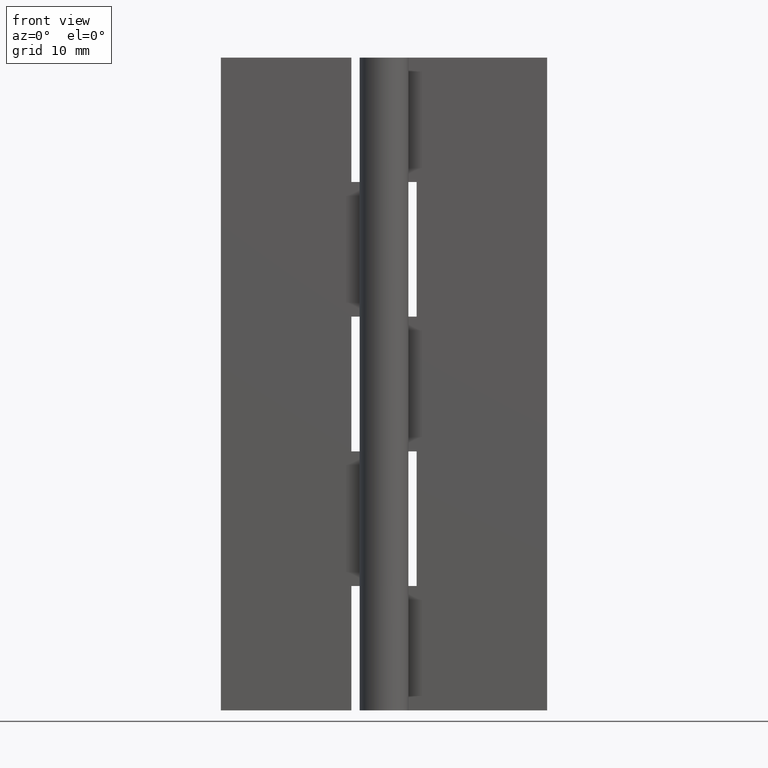
[diagram: clean part render]
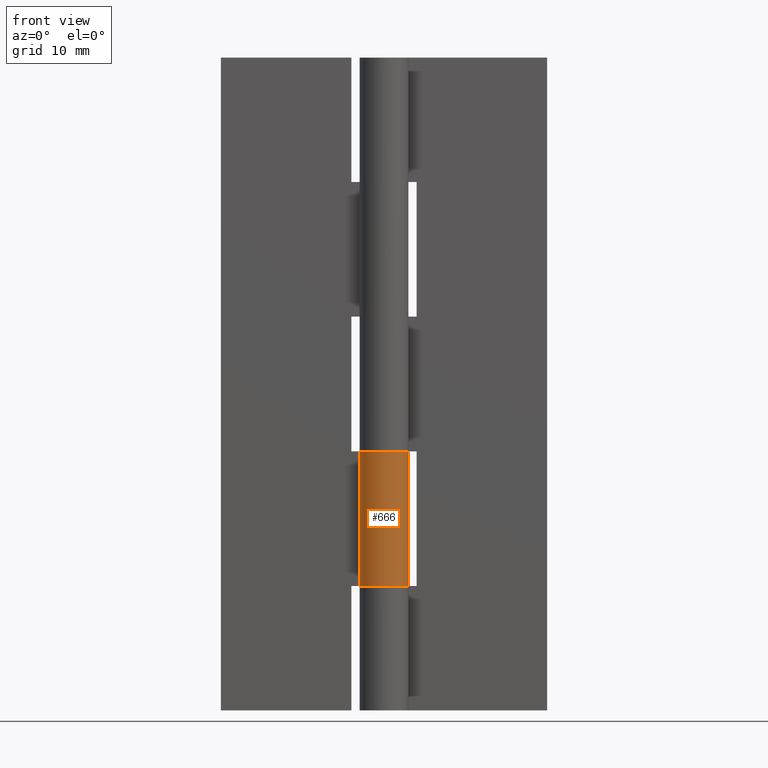
[diagram: same view with one face highlighted and labeled with its STEP entity id]
A machine part, front view. The second image highlights one B-rep face of the part: STEP entity #666.
In plain terms, the highlighted face is a freeform B-spline surface patch.
Its self-contained STEP definition (entity closure, byte-faithful):
#51=CARTESIAN_POINT('',(0.0,3.0,31.750000000000000));
#52=VERTEX_POINT('',#51);
#93=CARTESIAN_POINT('',(-2.626309197333780,1.450000000000000,31.750000000000000));
#94=VERTEX_POINT('',#93);
#100=CARTESIAN_POINT('',(0.0,3.0,31.750000000000000));
#101=CARTESIAN_POINT('',(2.290598042424808,3.0,31.750000000000000));
#102=CARTESIAN_POINT('',(2.894028888043301,0.790314364775724,31.750000000000000));
#103=CARTESIAN_POINT('',(3.497459733661794,-1.419371270448550,31.750000000000000));
#104=CARTESIAN_POINT('',(1.524795068197693,-2.583602136552761,31.750000000000000));
#105=CARTESIAN_POINT('',(-0.447869597266408,-3.747833002656974,31.750000000000000));
#106=CARTESIAN_POINT('',(-2.090650590886088,-2.151552952364328,31.750000000000000));
#107=CARTESIAN_POINT('',(-3.733431584505768,-0.555272902071681,31.750000000000000));
#108=CARTESIAN_POINT('',(-2.626309197333781,1.449999999999996,31.750000000000000));
#116=(BOUNDED_CURVE()B_SPLINE_CURVE(2,(#100,#101,#102,#103,#104,#105,#106,#107,#108),.UNSPECIFIED.,.F.,.U.)B_SPLINE_CURVE_WITH_KNOTS((3,2,2,2,3),(0.0,0.250000000000000,0.500000000000000,0.750000000000000,1.0),.UNSPECIFIED.)CURVE()GEOMETRIC_REPRESENTATION_ITEM()RATIONAL_B_SPLINE_CURVE((1.0,0.794807562115481,1.0,0.794807562115481,1.0,0.794807562115481,1.0,0.794807562115481,1.0))REPRESENTATION_ITEM(''));
#117=EDGE_CURVE('',#52,#94,#116,.T.);
#225=CARTESIAN_POINT('',(-2.626309197333780,1.450000000000000,15.250000000000000));
#226=VERTEX_POINT('',#225);
#227=CARTESIAN_POINT('',(0.0,3.0,15.250000000000000));
#228=VERTEX_POINT('',#227);
#229=CARTESIAN_POINT('',(-2.626309197333780,1.450000000000000,15.250000000000000));
#230=CARTESIAN_POINT('',(-3.733431584505770,-0.555272902071675,15.249999999999996));
#231=CARTESIAN_POINT('',(-2.090650590886091,-2.151552952364324,15.250000000000000));
#232=CARTESIAN_POINT('',(-0.447869597266413,-3.747833002656972,15.249999999999996));
#233=CARTESIAN_POINT('',(1.524795068197689,-2.583602136552764,15.250000000000000));
#234=CARTESIAN_POINT('',(3.497459733661792,-1.419371270448555,15.249999999999996));
#235=CARTESIAN_POINT('',(2.894028888043301,0.790314364775722,15.250000000000000));
#236=CARTESIAN_POINT('',(2.290598042424809,3.000000000000000,15.249999999999996));
#237=CARTESIAN_POINT('',(0.0,3.0,15.250000000000000));
#245=(BOUNDED_CURVE()B_SPLINE_CURVE(2,(#229,#230,#231,#232,#233,#234,#235,#236,#237),.UNSPECIFIED.,.F.,.U.)B_SPLINE_CURVE_WITH_KNOTS((3,2,2,2,3),(0.0,0.250000000000000,0.500000000000000,0.750000000000000,1.0),.UNSPECIFIED.)CURVE()GEOMETRIC_REPRESENTATION_ITEM()RATIONAL_B_SPLINE_CURVE((1.0,0.794807562115481,1.0,0.794807562115481,1.0,0.794807562115481,1.0,0.794807562115481,1.0))REPRESENTATION_ITEM(''));
#246=EDGE_CURVE('',#226,#228,#245,.T.);
#607=CARTESIAN_POINT('',(-2.626309197333780,1.450000000000000,31.750000000000000));
#608=CARTESIAN_POINT('',(-2.626309197333780,1.450000000000000,15.250000000000000));
#609=QUASI_UNIFORM_CURVE('',1,(#607,#608),.UNSPECIFIED.,.F.,.U.);
#610=EDGE_CURVE('',#94,#226,#609,.T.);
#634=CARTESIAN_POINT('',(-2.584887481324576,1.522615088882112,32.162500000000001));
#635=CARTESIAN_POINT('',(-2.584887481324576,1.522615088882112,14.827187500000001));
#636=CARTESIAN_POINT('',(-4.454017153952614,-1.650537421576552,32.162500000000009));
#637=CARTESIAN_POINT('',(-4.454017153952614,-1.650537421576552,14.827187499999997));
#638=CARTESIAN_POINT('',(-0.968449136630486,-2.839384840024272,32.162500000000001));
#639=CARTESIAN_POINT('',(-0.968449136630486,-2.839384840024272,14.827187500000001));
#640=CARTESIAN_POINT('',(2.517118880691642,-4.028232258471992,32.162500000000009));
#641=CARTESIAN_POINT('',(2.517118880691642,-4.028232258471992,14.827187499999997));
#642=CARTESIAN_POINT('',(2.976562347997527,-0.374268070349911,32.162500000000001));
#643=CARTESIAN_POINT('',(2.976562347997527,-0.374268070349911,14.827187500000001));
#644=CARTESIAN_POINT('',(3.436005815303412,3.279696117772171,32.162500000000009));
#645=CARTESIAN_POINT('',(3.436005815303412,3.279696117772171,14.827187499999997));
#646=CARTESIAN_POINT('',(-0.235377287183536,2.990752001199384,32.162500000000001));
#647=CARTESIAN_POINT('',(-0.235377287183536,2.990752001199384,14.827187500000001));
#655=(BOUNDED_SURFACE()B_SPLINE_SURFACE(1,2,((#634,#636,#638,#640,#642,#644,#646),(#635,#637,#639,#641,#643,#645,#647)),.UNSPECIFIED.,.F.,.F.,.U.)B_SPLINE_SURFACE_WITH_KNOTS((2,2),(3,2,2,3),(0.0,17.335312500000001),(0.0,5.702297214197750,11.404594428395500,17.106891642593251),.UNSPECIFIED.)GEOMETRIC_REPRESENTATION_ITEM()RATIONAL_B_SPLINE_SURFACE(((1.0,0.631578351302498,1.0,0.631578351302498,1.0,0.631578351302498,1.0),(1.0,0.631578351302498,1.0,0.631578351302498,1.0,0.631578351302498,1.0)))REPRESENTATION_ITEM('')SURFACE());
#656=ORIENTED_EDGE('',*,*,#117,.T.);
#657=ORIENTED_EDGE('',*,*,#610,.T.);
#658=ORIENTED_EDGE('',*,*,#246,.T.);
#659=CARTESIAN_POINT('',(0.0,3.0,31.750000000000000));
#660=CARTESIAN_POINT('',(0.0,3.0,15.250000000000000));
#661=QUASI_UNIFORM_CURVE('',1,(#659,#660),.UNSPECIFIED.,.F.,.U.);
#662=EDGE_CURVE('',#52,#228,#661,.T.);
#663=ORIENTED_EDGE('',*,*,#662,.F.);
#664=EDGE_LOOP('',(#656,#657,#658,#663));
#665=FACE_OUTER_BOUND('',#664,.T.);
#666=ADVANCED_FACE('',(#665),#655,.T.);